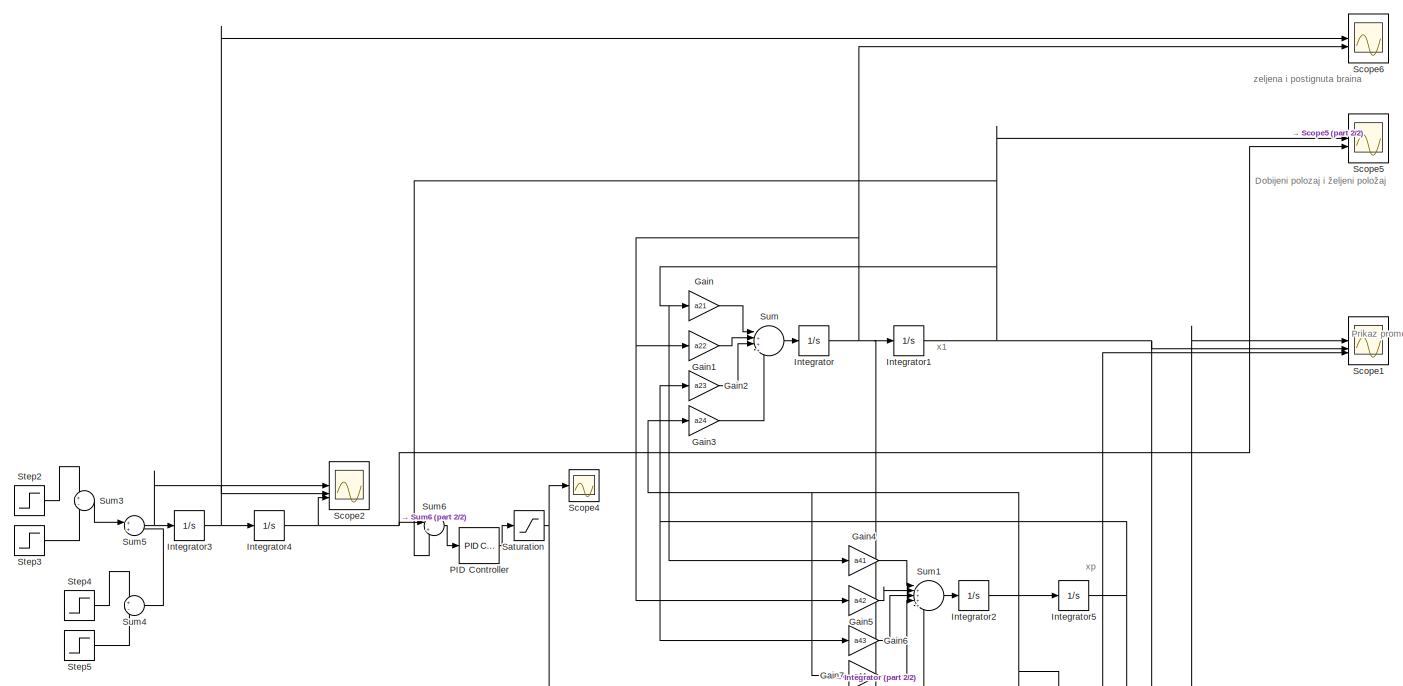
[diagram: root canvas - part 1/2, full width, top band]
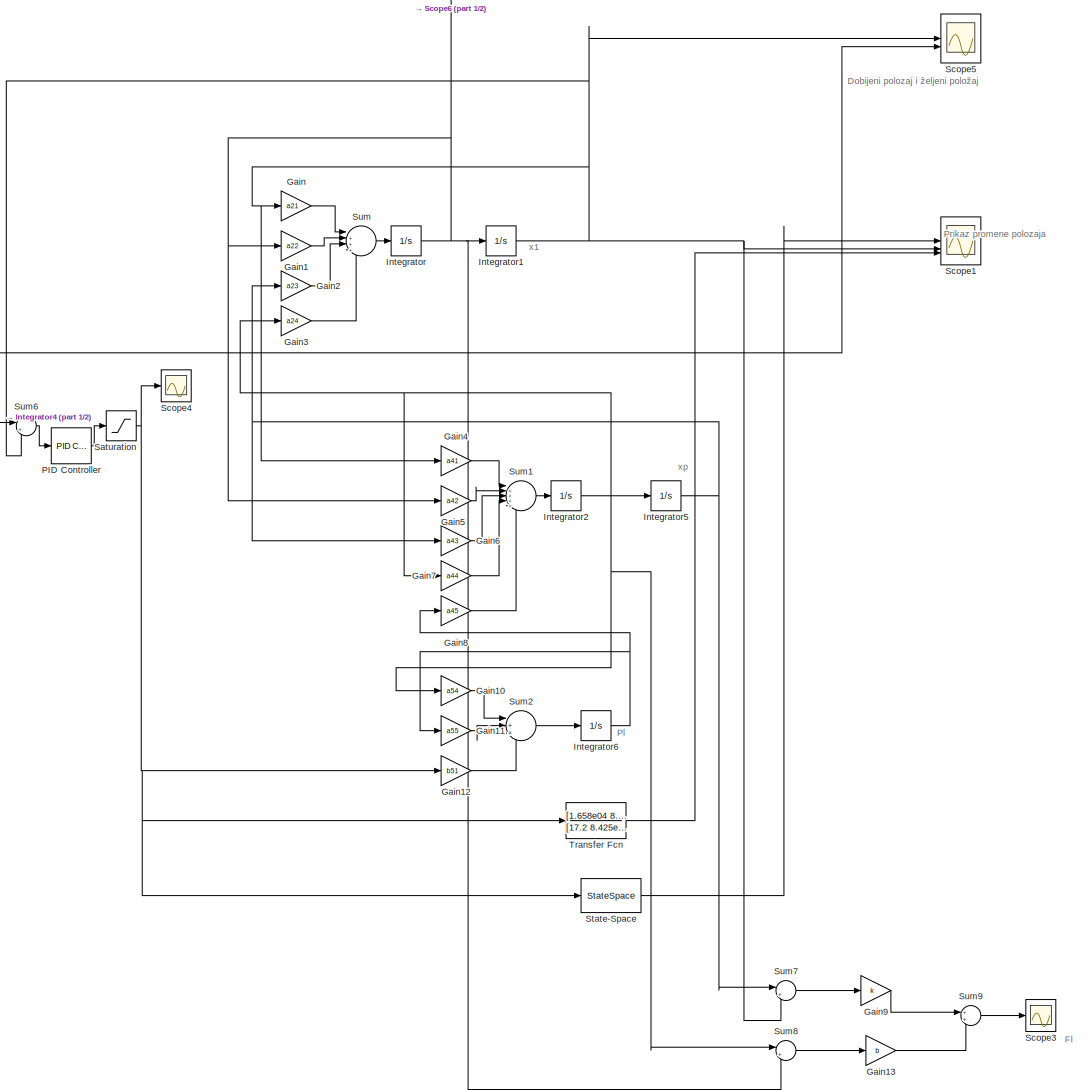
[diagram: root canvas - part 2/2, center side, full height]
MODEL slx_535cb851cad2
KIND model
CONFIG AbsTol = auto
CONFIG EnableMultiTasking = off
CONFIG FixedStep = auto
CONFIG MaxStep = auto
CONFIG MinStep = auto
CONFIG RelTol = 1e-3
CONFIG SampleTimeConstraint = Unconstrained
CONFIG SolverName = VariableStepAuto
CONFIG StartTime = 0.0
CONFIG StopTime = 10.0
BLOCK [Gain] Gain
  Gain = a21
BLOCK [Gain] Gain1
  Gain = a22
BLOCK [Gain] Gain10
  Gain = a54
BLOCK [Gain] Gain11
  Gain = a55
BLOCK [Gain] Gain12
  Gain = b51
BLOCK [Gain] Gain13
  Gain = b
BLOCK [Gain] Gain2
  Gain = a23
BLOCK [Gain] Gain3
  Gain = a24
BLOCK [Gain] Gain4
  Gain = a41
BLOCK [Gain] Gain5
  Gain = a42
BLOCK [Gain] Gain6
  Gain = a43
BLOCK [Gain] Gain7
  Gain = a44
BLOCK [Gain] Gain8
  Gain = a45
BLOCK [Gain] Gain9
  Gain = k
BLOCK [Integrator] Integrator
BLOCK [Integrator] Integrator1
BLOCK [Integrator] Integrator2
BLOCK [Integrator] Integrator3
BLOCK [Integrator] Integrator4
BLOCK [Integrator] Integrator5
BLOCK [Integrator] Integrator6
BLOCK [Reference] PID Controller  REF=slpidlib/PID Controller
  LibrarySourceBlock = simulink/Continuous/PID Controller
  SourceBlock = slpidlib/PID Controller
  SourceType = PID 1dof
BLOCK [Saturate] Saturation
  LowerLimit = 0
  UpperLimit = 24
BLOCK [Scope] Scope1
  Floating = off
  NumInputPorts = 3
  ScopeSpecificationString = Simulink.scopes.TimeScopeBlockCfg('CurrentConfiguration', extmgr.ConfigurationSet(extmgr.Configuration('Core','General UI',true),extmgr.Configuration('Core','Source UI',true),extmgr.Configuration('Sources','WiredSimulink',true,'DataLoggingVariableName','ScopeData2'),extmgr.Configuration('Visuals','Time Domain',true,'SerializedDisplays',{struct('MinYLimReal','-0.06284','MaxYLimReal','0.56559','YLab...<+2797ch>
BLOCK [Scope] Scope2
  Floating = off
  NumInputPorts = 3
  ScopeSpecificationString = Simulink.scopes.TimeScopeBlockCfg('CurrentConfiguration', extmgr.ConfigurationSet(extmgr.Configuration('Core','General UI',true),extmgr.Configuration('Core','Source UI',true),extmgr.Configuration('Sources','WiredSimulink',true,'DataLoggingVariableName','ScopeData1'),extmgr.Configuration('Visuals','Time Domain',true,'SerializedDisplays',{struct('MinYLimReal','-6.95','MaxYLimReal','6.95','YLabelReal...<+2778ch>
BLOCK [Scope] Scope3
  Floating = off
  NumInputPorts = 1
  ScopeSpecificationString = Simulink.scopes.TimeScopeBlockCfg('CurrentConfiguration', extmgr.ConfigurationSet(extmgr.Configuration('Core','General UI',true),extmgr.Configuration('Core','Source UI',true),extmgr.Configuration('Sources','WiredSimulink',true,'DataLoggingVariableName','ScopeData1'),extmgr.Configuration('Visuals','Time Domain',true,'SerializedDisplays',{struct('MinYLimReal','-1757.96638','MaxYLimReal','1757.33445'...<+1458ch>
BLOCK [Scope] Scope4
  Floating = off
  NumInputPorts = 1
  ScopeSpecificationString = Simulink.scopes.TimeScopeBlockCfg('CurrentConfiguration', extmgr.ConfigurationSet(extmgr.Configuration('Core','General UI',true),extmgr.Configuration('Core','Source UI',true),extmgr.Configuration('Sources','WiredSimulink',true),extmgr.Configuration('Visuals','Time Domain',true,'SerializedDisplays',{struct('MinYLimReal','-2.93761','MaxYLimReal','26.4385','YLabelReal','','MinYLimMag','0.00000','MaxY...<+1403ch>
BLOCK [Scope] Scope5
  Floating = off
  NumInputPorts = 2
  ScopeSpecificationString = Simulink.scopes.TimeScopeBlockCfg('CurrentConfiguration', extmgr.ConfigurationSet(extmgr.Configuration('Core','General UI',true),extmgr.Configuration('Core','Source UI',true),extmgr.Configuration('Sources','WiredSimulink',true,'DataLoggingVariableName','ScopeData1'),extmgr.Configuration('Visuals','Time Domain',true,'SerializedDisplays',{struct('MinYLimReal','-0.06337','MaxYLimReal','0.57029','YLab...<+2707ch>
BLOCK [Scope] Scope6
  Floating = off
  NumInputPorts = 2
  ScopeSpecificationString = Simulink.scopes.TimeScopeBlockCfg('CurrentConfiguration', extmgr.ConfigurationSet(extmgr.Configuration('Core','General UI',true),extmgr.Configuration('Core','Source UI',true),extmgr.Configuration('Sources','WiredSimulink',true,'DataLoggingVariableName','ScopeData2'),extmgr.Configuration('Visuals','Time Domain',true,'SerializedDisplays',{struct('MinYLimReal','-0.078','MaxYLimReal','0.702','YLabelRe...<+2705ch>
BLOCK [StateSpace] State-Space
  A = A
  B = B
  C = C
  D = 0
  InitialCondition = 0
BLOCK [Step] Step2
  After = 3.12
  SampleTime = 0
  Time = 0
BLOCK [Step] Step3
  After = 3.12
  SampleTime = 0
  Time = 0.2
BLOCK [Step] Step4
  After = -3.12
  SampleTime = 0
  Time = 0.8
BLOCK [Step] Step5
  After = -3.12
  SampleTime = 0
BLOCK [Sum] Sum
  Inputs = |++++
BLOCK [Sum] Sum1
  Inputs = |+++++
BLOCK [Sum] Sum2
  Inputs = |+++
BLOCK [Sum] Sum3
  Inputs = +-
BLOCK [Sum] Sum4
  Inputs = +-
BLOCK [Sum] Sum5
BLOCK [Sum] Sum6
  Inputs = |+-
BLOCK [Sum] Sum7
  Inputs = |+-
BLOCK [Sum] Sum8
  Inputs = |+-
BLOCK [Sum] Sum9
BLOCK [TransferFcn] Transfer Fcn
  Denominator = [17.2  8.425e05  6.27e05  3.6e09 0]
  Numerator = [1.658e04  8.84e07]
ANNOTATION (root): zeljena i postignuta braina
ANNOTATION (root): Dobijeni polozaj i željeni položaj
ANNOTATION (root): Fl
ANNOTATION (root): Pl
ANNOTATION (root): Prikaz promene polozaja
ANNOTATION (root): x1
ANNOTATION (root): xp
LINE Gain10:1 -> Sum2:1
LINE Gain11:1 -> Sum2:2
LINE Gain12:1 -> Sum2:3
LINE Gain13:1 -> Sum9:2
LINE Gain1:1 -> Sum:2
LINE Gain2:1 -> Sum:3
LINE Gain3:1 -> Sum:4
LINE Gain4:1 -> Sum1:1
LINE Gain5:1 -> Sum1:2
LINE Gain6:1 -> Sum1:3
LINE Gain7:1 -> Sum1:4
LINE Gain8:1 -> Sum1:5
LINE Gain9:1 -> Sum9:1
LINE Gain:1 -> Sum:1
NET Integrator1:1 -> Gain4:1, Gain:1, Scope1:2, Scope5:1, Sum6:2, Sum7:2
NET Integrator2:1 -> Gain10:1, Gain3:1, Gain7:1, Integrator5:1, Sum8:1
NET Integrator3:1 -> Integrator4:1, Scope2:2, Scope6:1
NET Integrator4:1 -> Scope2:3, Scope5:2, Sum6:1
NET Integrator5:1 -> Gain2:1, Gain6:1, Sum7:1
NET Integrator6:1 -> Gain11:1, Gain8:1
NET Integrator:1 -> Gain1:1, Gain5:1, Integrator1:1, Scope6:2, Sum8:2
LINE PID Controller:1 -> Saturation:1
NET Saturation:1 -> Gain12:1, Scope4:1, State-Space:1, Transfer Fcn:1
LINE State-Space:1 -> Scope1:1
LINE Step2:1 -> Sum3:1
LINE Step3:1 -> Sum3:2
LINE Step4:1 -> Sum4:1
LINE Step5:1 -> Sum4:2
LINE Sum1:1 -> Integrator2:1
LINE Sum2:1 -> Integrator6:1
LINE Sum3:1 -> Sum5:1
LINE Sum4:1 -> Sum5:2
NET Sum5:1 -> Integrator3:1, Scope2:1
LINE Sum6:1 -> PID Controller:1
LINE Sum7:1 -> Gain9:1
LINE Sum8:1 -> Gain13:1
LINE Sum9:1 -> Scope3:1
LINE Sum:1 -> Integrator:1
LINE Transfer Fcn:1 -> Scope1:3
note: NET lines group one-source signal fan-out (src -> all destinations, sorted); 1:1 wires keep LINE
